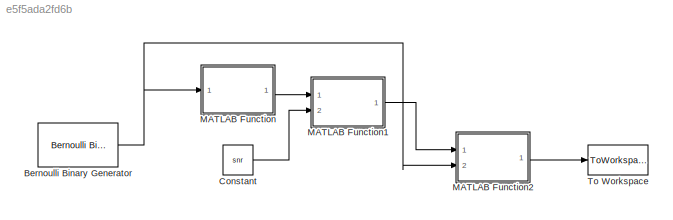
MODEL slx_e5f5ada2fd6b
KIND model
CONFIG AbsTol = auto
CONFIG EnableMultiTasking = off
CONFIG FixedStep = auto
CONFIG MaxStep = auto
CONFIG MinStep = auto
CONFIG RelTol = 1e-3
CONFIG SampleTimeConstraint = Unconstrained
CONFIG Solver = VariableStepAuto
CONFIG SolverName = VariableStepAuto
CONFIG StartTime = 0.0
CONFIG StopTime = 10.0
BLOCK [Reference] Bernoulli Binary Generator  REF=commrandsrc3/Bernoulli Binary
Generator
  Ports = [0, 1]
  SourceBlock = commrandsrc3/Bernoulli Binary\nGenerator
  SourceProductBaseCode = CM
  SourceProductName = Communications System Toolbox
  SourceType = Bernoulli Binary Generator
BLOCK [Constant] Constant
  Value = snr
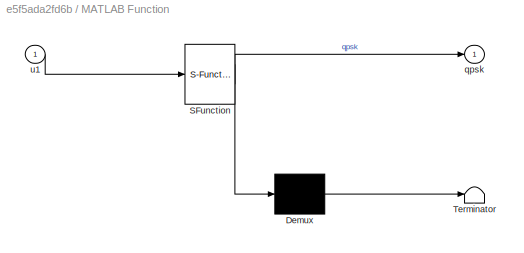
BLOCK [SubSystem] MATLAB Function
  ErrorFcn = Stateflow.Translate.translate
  PermitHierarchicalResolution = ExplicitOnly
  Ports = [1, 1]
  RequestExecContextInheritance = off
  SFBlockType = MATLAB Function
  TreatAsAtomicUnit = on
BLOCK [Demux] MATLAB Function/ Demux 
  Outputs = 1
  Ports = [1, 1]
BLOCK [S-Function] MATLAB Function/ SFunction 
  EnableBusSupport = on
  FunctionName = sf_sfun
  PortCounts = [1 2]
  Ports = [1, 2]
  SFcnIsStateOwnerBlock = off
  SFunctionDeploymentMode = off
  Tag = Stateflow S-Function lab2_sim_2 2
BLOCK [Terminator] MATLAB Function/ Terminator 
BLOCK [Outport] MATLAB Function/qpsk
  IconDisplay = Port number
BLOCK [Inport] MATLAB Function/u1
  IconDisplay = Port number
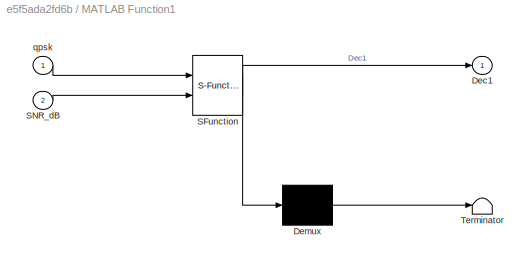
BLOCK [SubSystem] MATLAB Function1
  ErrorFcn = Stateflow.Translate.translate
  PermitHierarchicalResolution = ExplicitOnly
  Ports = [2, 1]
  RequestExecContextInheritance = off
  SFBlockType = MATLAB Function
  TreatAsAtomicUnit = on
BLOCK [Demux] MATLAB Function1/ Demux 
  Outputs = 1
  Ports = [1, 1]
BLOCK [S-Function] MATLAB Function1/ SFunction 
  EnableBusSupport = on
  FunctionName = sf_sfun
  PortCounts = [2 2]
  Ports = [2, 2]
  SFcnIsStateOwnerBlock = off
  SFunctionDeploymentMode = off
  Tag = Stateflow S-Function lab2_sim_2 1
BLOCK [Terminator] MATLAB Function1/ Terminator 
BLOCK [Outport] MATLAB Function1/Dec1
  IconDisplay = Port number
BLOCK [Inport] MATLAB Function1/SNR_dB
  IconDisplay = Port number
  Port = 2
BLOCK [Inport] MATLAB Function1/qpsk
  IconDisplay = Port number
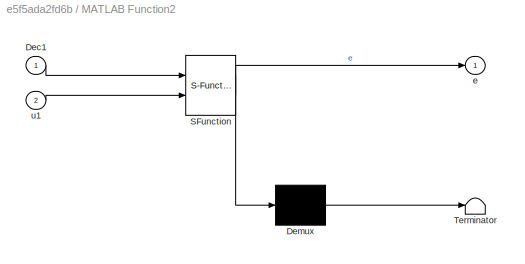
BLOCK [SubSystem] MATLAB Function2
  ErrorFcn = Stateflow.Translate.translate
  PermitHierarchicalResolution = ExplicitOnly
  Ports = [2, 1]
  RequestExecContextInheritance = off
  SFBlockType = MATLAB Function
  TreatAsAtomicUnit = on
BLOCK [Demux] MATLAB Function2/ Demux 
  Outputs = 1
  Ports = [1, 1]
BLOCK [S-Function] MATLAB Function2/ SFunction 
  EnableBusSupport = on
  FunctionName = sf_sfun
  PortCounts = [2 2]
  Ports = [2, 2]
  SFcnIsStateOwnerBlock = off
  SFunctionDeploymentMode = off
  Tag = Stateflow S-Function lab2_sim_2 3
BLOCK [Terminator] MATLAB Function2/ Terminator 
BLOCK [Inport] MATLAB Function2/Dec1
  IconDisplay = Port number
BLOCK [Outport] MATLAB Function2/e
  IconDisplay = Port number
BLOCK [Inport] MATLAB Function2/u1
  IconDisplay = Port number
  Port = 2
BLOCK [ToWorkspace] To Workspace
  FixptAsFi = on
  MaxDataPoints = inf
  Ports = [1]
  SampleTime = -1
  Save2DSignal = 2-D array (concatenate along first dimension)
  VariableName = simout
NET Bernoulli Binary Generator:1 -> MATLAB Function2:2, MATLAB Function:1
LINE Constant:1 -> MATLAB Function1:2
LINE MATLAB Function1:1 -> MATLAB Function2:1
LINE MATLAB Function2:1 -> To Workspace:1
LINE MATLAB Function:1 -> MATLAB Function1:1
note: NET lines group one-source signal fan-out (src -> all destinations, sorted); 1:1 wires keep LINE
CHART MATLAB Function1 states=1 transitions=1
  STATE_LABEL 'eML_blk_kernel()'
  STATE_LABEL 'SCRIPT:\nfunction Dec1 = fcn(qpsk,SNR_dB)\n\n    N = length(qpsk);\n    h = complex(randn(1,N),randn(1,N));\n    noise = complex(randn(1,N),randn(1,N));\n    y = zeros(1,N) + 1j*zeros(1,N);\n    Dec1 = zeros(1,N) + 1j*zeros(1,N);\n    SNR_lin = 10^(SNR_dB/10);\n    sigma = 1/sqrt(SNR_lin);\n    \n    y = h.*qpsk + sigma*noise;\n    Dec1 = y./h;\n    \nend\n'
CHART MATLAB Function states=1 transitions=1
  STATE_LABEL 'eML_blk_kernel()'
  STATE_LABEL 'SCRIPT:\nfunction qpsk = fcn(u1)\n\n    X = transpose(u1);\n    N = length(X);\n    qpsk = zeros(1,N/2) + 1j*zeros(1,N/2);;\n    n = 1;\n    for i = 1:2:N\n        if (X(i) == 0) && (X(i+1) == 0)\n            qpsk(n) = (1+1j)/sqrt(2);\n        elseif (X(i) == 0) && (X(i+1) == 1)\n            qpsk(n) = (-1+1j)/sqrt(2);\n        elseif (X(i) == 1) && (X(i+1) == 0)\n            qpsk(n) = (-1-1j)/sqrt(2);\n        ...<+111ch>'
CHART MATLAB Function2 states=1 transitions=1
  STATE_LABEL 'eML_blk_kernel()'
  STATE_LABEL 'SCRIPT:\nfunction e = fcn(Dec1,u1)\n\n    N = length(Dec1);\n    X = transpose(u1);\n    X_rcvd = zeros(1,N*2);\n    \n    n = 1;\n    for j = 1:N\n        if (real(Dec1(j))>0) && (imag(Dec1(j))>0)\n            X_rcvd(n) = 0;\n            X_rcvd(n+1) = 0;\n        elseif (real(Dec1(j))<0) && (imag(Dec1(j))>0)\n            X_rcvd(n) = 0;\n            X_rcvd(n+1) = 1;\n        elseif (real(Dec1(j))<0) && (imag(Dec...<+250ch>'
